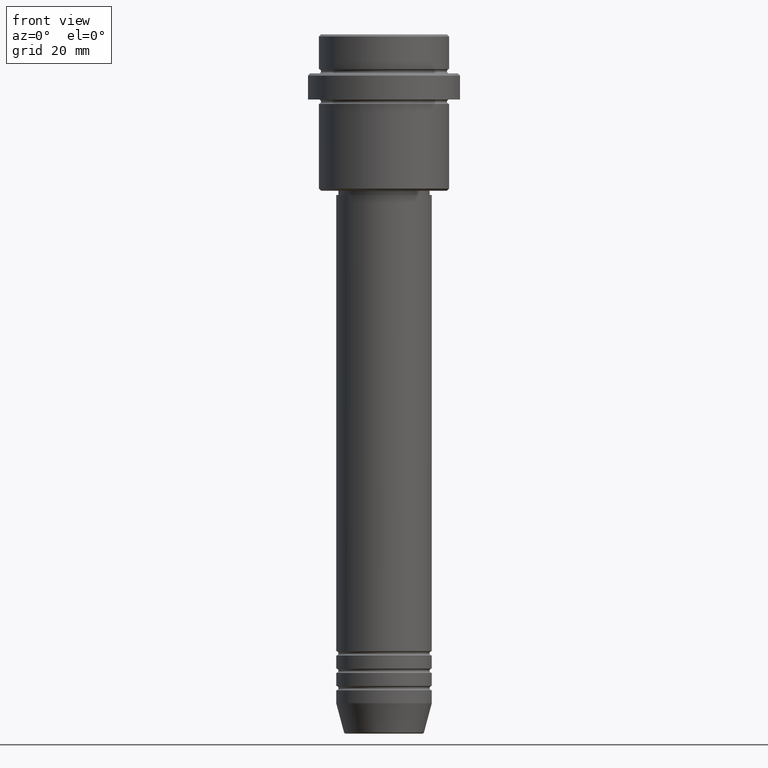
[diagram: clean part render]
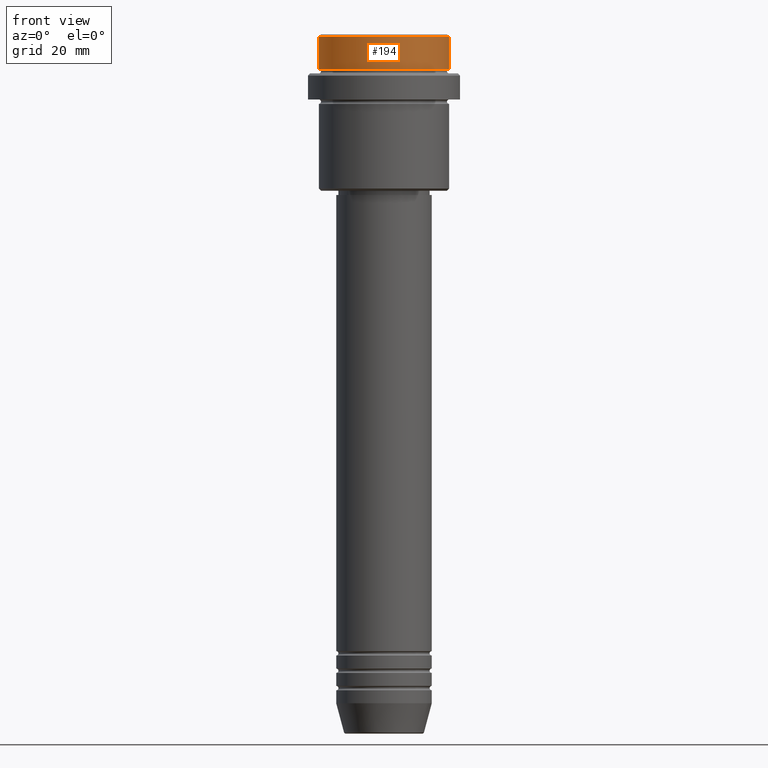
[diagram: same view with one face highlighted and labeled with its STEP entity id]
A machine part, front view. The second image highlights one B-rep face of the part: STEP entity #194.
In plain terms, the highlighted cylindrical surface (partial cylindrical patch) has radius 15 mm, axis along (-0, -0, 1).
Its self-contained STEP definition (entity closure, byte-faithful):
#14 = CARTESIAN_POINT ( 'NONE',  ( 0.000000000000000000, 0.000000000000000000, -0.5000000000000386358 ) ) ;
#71 = DIRECTION ( 'NONE',  ( -0.000000000000000000, -0.000000000000000000, 1.000000000000000000 ) ) ;
#131 = CYLINDRICAL_SURFACE ( 'NONE', #694, 15.00000000000000000 ) ;
#178 = VECTOR ( 'NONE', #71, 1000.000000000000000 ) ;
#186 = ORIENTED_EDGE ( 'NONE', *, *, #449, .F. ) ;
#194 = ADVANCED_FACE ( 'NONE', ( #915 ), #131, .T. ) ;
#268 = EDGE_LOOP ( 'NONE', ( #186, #1295, #665, #996 ) ) ;
#269 = CIRCLE ( 'NONE', #389, 15.00000000000000000 ) ;
#282 = LINE ( 'NONE', #840, #1305 ) ;
#327 = DIRECTION ( 'NONE',  ( 0.000000000000000000, 0.000000000000000000, -1.000000000000000000 ) ) ;
#389 = AXIS2_PLACEMENT_3D ( 'NONE', #14, #327, #1293 ) ;
#440 = CARTESIAN_POINT ( 'NONE',  ( -15.00000000000000000, 1.836970198721029589E-15, -0.5000000000000386358 ) ) ;
#442 = AXIS2_PLACEMENT_3D ( 'NONE', #842, #719, #1152 ) ;
#449 = EDGE_CURVE ( 'NONE', #711, #1060, #282, .T. ) ;
#452 = DIRECTION ( 'NONE',  ( -0.000000000000000000, -0.000000000000000000, 1.000000000000000000 ) ) ;
#463 = CARTESIAN_POINT ( 'NONE',  ( 15.00000000000000000, 0.000000000000000000, -7.999999999999998224 ) ) ;
#469 = EDGE_CURVE ( 'NONE', #766, #613, #1180, .T. ) ;
#609 = DIRECTION ( 'NONE',  ( -0.000000000000000000, -0.000000000000000000, 1.000000000000000000 ) ) ;
#613 = VERTEX_POINT ( 'NONE', #1200 ) ;
#626 = CARTESIAN_POINT ( 'NONE',  ( 15.00000000000000000, 0.000000000000000000, 0.000000000000000000 ) ) ;
#633 = EDGE_CURVE ( 'NONE', #613, #1060, #269, .T. ) ;
#665 = ORIENTED_EDGE ( 'NONE', *, *, #469, .T. ) ;
#675 = CIRCLE ( 'NONE', #442, 15.00000000000000000 ) ;
#678 = CARTESIAN_POINT ( 'NONE',  ( 0.000000000000000000, 0.000000000000000000, 0.000000000000000000 ) ) ;
#694 = AXIS2_PLACEMENT_3D ( 'NONE', #678, #452, #1135 ) ;
#711 = VERTEX_POINT ( 'NONE', #1012 ) ;
#719 = DIRECTION ( 'NONE',  ( -0.000000000000000000, -0.000000000000000000, 1.000000000000000000 ) ) ;
#766 = VERTEX_POINT ( 'NONE', #463 ) ;
#840 = CARTESIAN_POINT ( 'NONE',  ( -15.00000000000000000, 1.836970198721029589E-15, 0.000000000000000000 ) ) ;
#842 = CARTESIAN_POINT ( 'NONE',  ( 0.000000000000000000, 0.000000000000000000, -7.999999999999998224 ) ) ;
#915 = FACE_OUTER_BOUND ( 'NONE', #268, .T. ) ;
#943 = EDGE_CURVE ( 'NONE', #711, #766, #675, .T. ) ;
#996 = ORIENTED_EDGE ( 'NONE', *, *, #633, .T. ) ;
#1012 = CARTESIAN_POINT ( 'NONE',  ( -15.00000000000000000, 1.836970198721029589E-15, -7.999999999999998224 ) ) ;
#1060 = VERTEX_POINT ( 'NONE', #440 ) ;
#1135 = DIRECTION ( 'NONE',  ( 1.000000000000000000, 0.000000000000000000, 0.000000000000000000 ) ) ;
#1152 = DIRECTION ( 'NONE',  ( 1.000000000000000000, 0.000000000000000000, 0.000000000000000000 ) ) ;
#1180 = LINE ( 'NONE', #626, #178 ) ;
#1200 = CARTESIAN_POINT ( 'NONE',  ( 15.00000000000000000, 0.000000000000000000, -0.5000000000000386358 ) ) ;
#1293 = DIRECTION ( 'NONE',  ( 1.000000000000000000, 0.000000000000000000, 0.000000000000000000 ) ) ;
#1295 = ORIENTED_EDGE ( 'NONE', *, *, #943, .T. ) ;
#1305 = VECTOR ( 'NONE', #609, 1000.000000000000000 ) ;